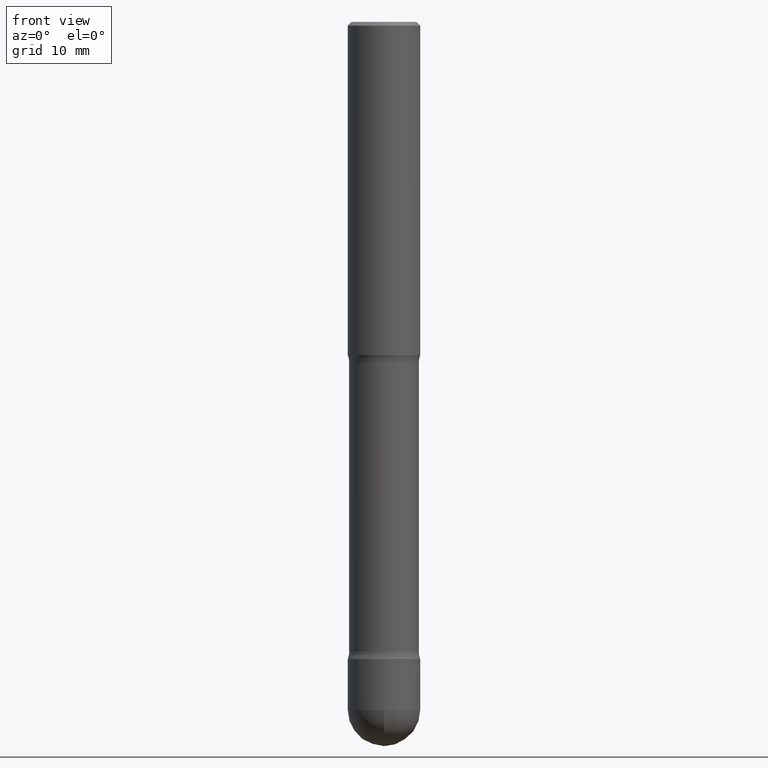
[diagram: clean part render]
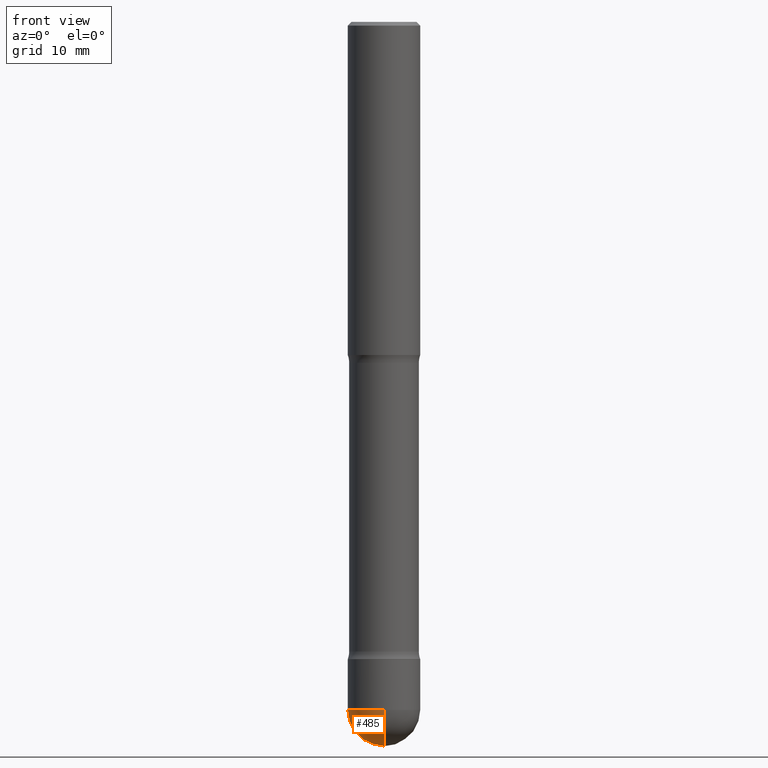
[diagram: same view with one face highlighted and labeled with its STEP entity id]
A machine part, front view. The second image highlights one B-rep face of the part: STEP entity #485.
In plain terms, the highlighted spherical surface has radius 5 mm.
Its self-contained STEP definition (entity closure, byte-faithful):
#6 = CIRCLE ( 'NONE', #206, 0.1968499999999998307 ) ;
#13 = FACE_OUTER_BOUND ( 'NONE', #466, .T. ) ;
#21 = ORIENTED_EDGE ( 'NONE', *, *, #434, .T. ) ;
#23 = AXIS2_PLACEMENT_3D ( 'NONE', #211, #554, #355 ) ;
#27 = CARTESIAN_POINT ( 'NONE',  ( -1.374596203102447142E-15, -0.1968500000000126260, -3.740149999999999864 ) ) ;
#51 = AXIS2_PLACEMENT_3D ( 'NONE', #435, #164, #561 ) ;
#83 = VERTEX_POINT ( 'NONE', #27 ) ;
#99 = ORIENTED_EDGE ( 'NONE', *, *, #551, .F. ) ;
#100 = CIRCLE ( 'NONE', #475, 0.1968499999999993033 ) ;
#114 = EDGE_CURVE ( 'NONE', #326, #83, #410, .T. ) ;
#117 = VERTEX_POINT ( 'NONE', #394 ) ;
#139 = CARTESIAN_POINT ( 'NONE',  ( 9.602559767347137983E-29, -1.378212278938728887E-14, -3.937000000000000277 ) ) ;
#145 = AXIS2_PLACEMENT_3D ( 'NONE', #521, #219, #525 ) ;
#146 = CARTESIAN_POINT ( 'NONE',  ( -0.1968499999999993033, -1.117892171267132551E-14, -3.740150000000000308 ) ) ;
#164 = DIRECTION ( 'NONE',  ( -2.445468806185136597E-29, 3.491481338843145583E-15, 1.000000000000000000 ) ) ;
#173 = ORIENTED_EDGE ( 'NONE', *, *, #114, .F. ) ;
#175 = EDGE_CURVE ( 'NONE', #117, #326, #100, .T. ) ;
#179 = DIRECTION ( 'NONE',  ( -2.445468806185136597E-29, 3.491481338843145583E-15, 1.000000000000000000 ) ) ;
#202 = CARTESIAN_POINT ( 'NONE',  ( 9.129586207050842305E-29, -1.308277110171540879E-14, -3.740150000000000308 ) ) ;
#206 = AXIS2_PLACEMENT_3D ( 'NONE', #202, #298, #433 ) ;
#211 = CARTESIAN_POINT ( 'NONE',  ( 9.129586207050842305E-29, -1.308277110171540879E-14, -3.740150000000000308 ) ) ;
#219 = DIRECTION ( 'NONE',  ( -1.000000000000000000, 6.982962677686265922E-15, -4.883557194083112340E-29 ) ) ;
#243 = VERTEX_POINT ( 'NONE', #139 ) ;
#298 = DIRECTION ( 'NONE',  ( 1.000000000000000000, -7.105427357601001070E-15, 4.926315508542082329E-29 ) ) ;
#326 = VERTEX_POINT ( 'NONE', #146 ) ;
#355 = DIRECTION ( 'NONE',  ( -6.982962677686265133E-15, -1.000000000000000000, 2.775563112689119062E-15 ) ) ;
#358 = CARTESIAN_POINT ( 'NONE',  ( 9.146420155453339430E-29, -1.305866392947419182E-14, -3.740150000000000308 ) ) ;
#394 = CARTESIAN_POINT ( 'NONE',  ( 1.398703375343845351E-15, 0.1968499999999865357, -3.740150000000000752 ) ) ;
#410 = CIRCLE ( 'NONE', #51, 0.1968499999999993033 ) ;
#433 = DIRECTION ( 'NONE',  ( 7.105427357601001070E-15, 1.000000000000000000, 0.000000000000000000 ) ) ;
#434 = EDGE_CURVE ( 'NONE', #243, #83, #437, .T. ) ;
#435 = CARTESIAN_POINT ( 'NONE',  ( 9.146420155453339430E-29, -1.305866392947419182E-14, -3.740150000000000308 ) ) ;
#437 = CIRCLE ( 'NONE', #145, 0.1968499999999998307 ) ;
#461 = ORIENTED_EDGE ( 'NONE', *, *, #175, .F. ) ;
#466 = EDGE_LOOP ( 'NONE', ( #99, #21, #173, #461 ) ) ;
#475 = AXIS2_PLACEMENT_3D ( 'NONE', #358, #179, #566 ) ;
#485 = ADVANCED_FACE ( 'NONE', ( #13 ), #555, .T. ) ;
#521 = CARTESIAN_POINT ( 'NONE',  ( 9.129586207050842305E-29, -1.308277110171540879E-14, -3.740150000000000308 ) ) ;
#525 = DIRECTION ( 'NONE',  ( -6.982962677686265922E-15, -1.000000000000000000, 0.000000000000000000 ) ) ;
#551 = EDGE_CURVE ( 'NONE', #243, #117, #6, .T. ) ;
#554 = DIRECTION ( 'NONE',  ( 1.000000000000000000, -6.982962677686265133E-15, 4.883557194083112340E-29 ) ) ;
#555 = SPHERICAL_SURFACE ( 'NONE', #23, 0.1968499999999998307 ) ;
#561 = DIRECTION ( 'NONE',  ( 1.000000000000000000, -6.982962677686263555E-15, 0.000000000000000000 ) ) ;
#566 = DIRECTION ( 'NONE',  ( 1.000000000000000000, -6.982962677686263555E-15, 0.000000000000000000 ) ) ;